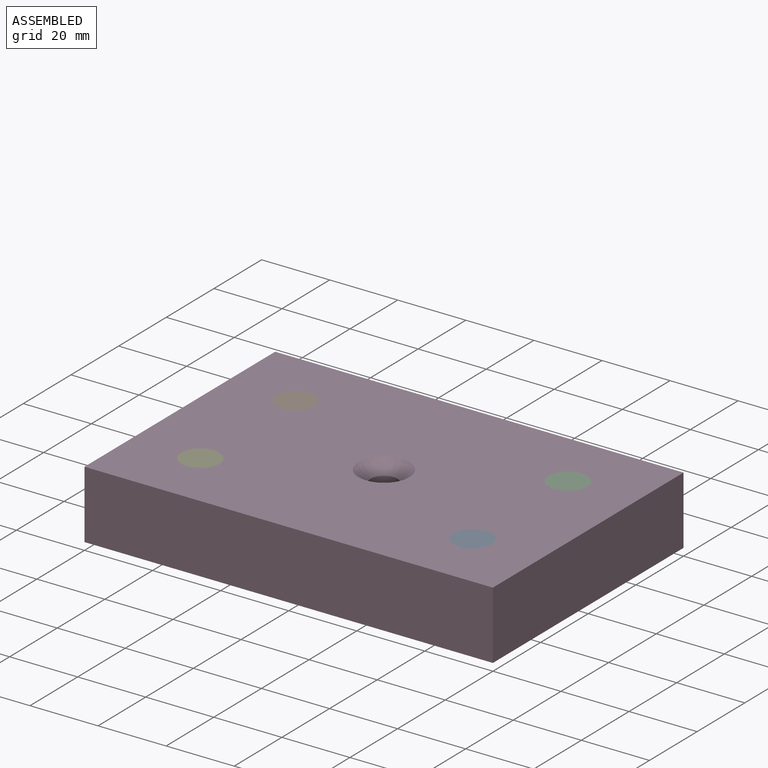
[diagram: assembled view]
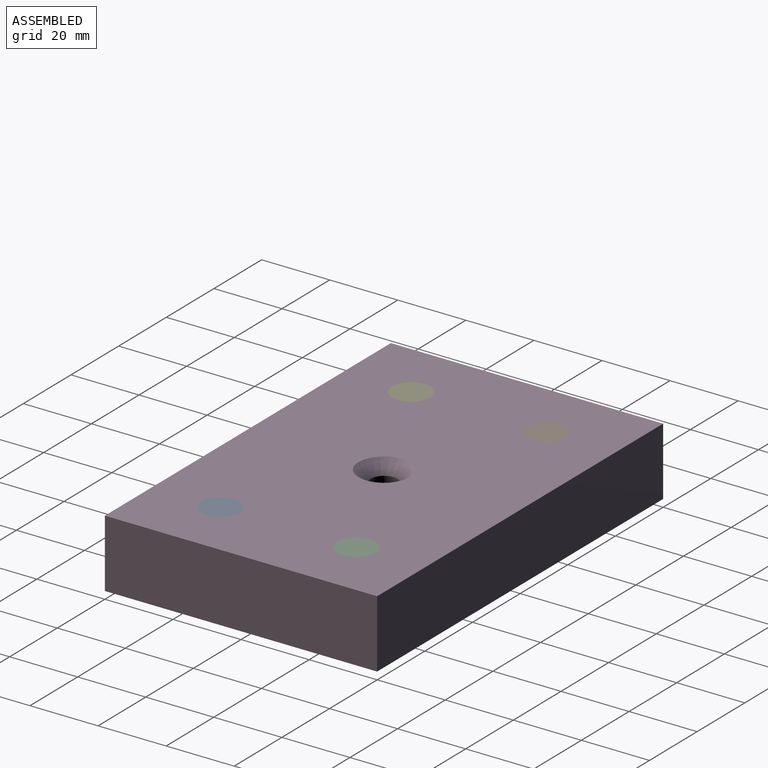
[diagram: assembled view, second angle]
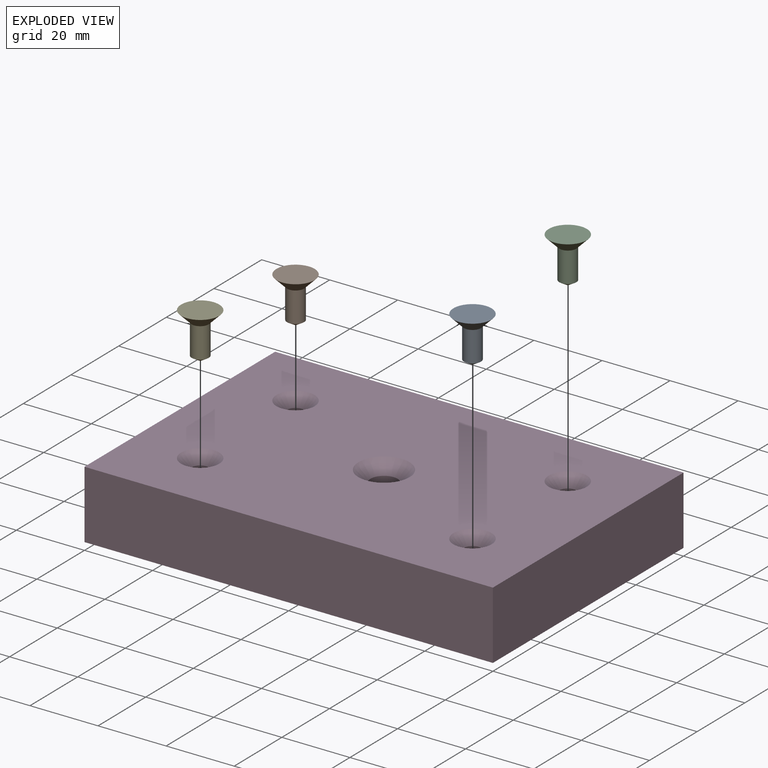
[diagram: exploded view]
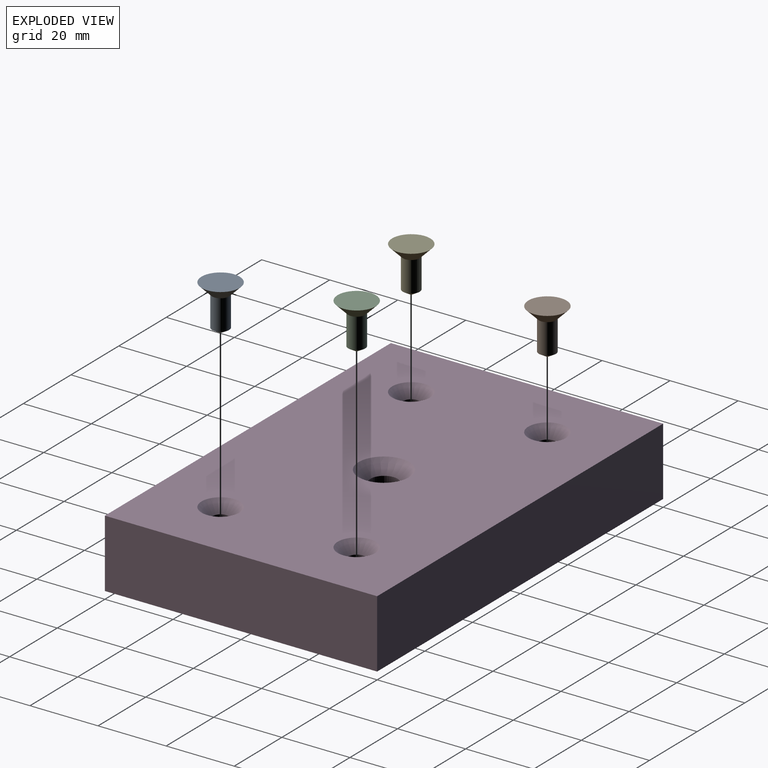
[diagram: exploded view, second angle]
ASSEMBLY  parts=5 mates=4
PART A: 4 faces, bbox 11.2x11.2x13.5 mm
  f0: plane 11.2x11.2mm, normal (0,0,1), area 98.5mm2, adj f3
  f1: cone r=0mm half-angle=59deg, axis (0,0,1), area 22.9mm2, adj f2
  f2: cylinder r=2.5mm len=8.9mm, axis (0,0,1), area 139.8mm2, adj f1,f3
  f3: cone r=2.5mm half-angle=45deg, axis (0,0,1), area 111.6mm2, adj f0,f2
PART B: same geometry as A
PART C: same geometry as A
PART D: 21 faces, bbox 120x80x20 mm
  f0: plane 80x20mm, normal (1,0,0), area 1600mm2, adj f1,f3,f4,f5
  f1: plane 120x20mm, normal (0,1,0), area 2400mm2, adj f0,f2,f4,f5
  f2: plane 80x20mm, normal (-1,0,0), area 1600mm2, adj f1,f3,f4,f5
  f3: plane 120x20mm, normal (0,-1,0), area 2400mm2, adj f0,f2,f4,f5
  f4: plane 120x80mm, normal (0,0,1), area 9029.2mm2, adj f0,f1,f2,f3,f8,f11,f14,f17
  f5: plane 120x80mm, normal (0,0,-1), area 9600mm2, adj f0,f1,f2,f3
  f6: cone r=0mm half-angle=59deg, axis (0,0,1), area 22.9mm2, adj f7
  f7: cylinder r=2.5mm len=8.9mm, axis (0,0,1), area 139.8mm2, adj f6,f8
  f8: cone r=2.5mm half-angle=45deg, axis (0,0,1), area 111.6mm2, adj f4,f7
  f9: cone r=0mm half-angle=59deg, axis (0,0,1), area 22.9mm2, adj f10
  f10: cylinder r=2.5mm len=8.9mm, axis (0,0,1), area 139.8mm2, adj f9,f11
  f11: cone r=2.5mm half-angle=45deg, axis (0,0,1), area 111.6mm2, adj f4,f10
  f12: cone r=0mm half-angle=59deg, axis (0,0,1), area 22.9mm2, adj f13
  f13: cylinder r=2.5mm len=8.9mm, axis (0,0,1), area 139.8mm2, adj f12,f14
  f14: cone r=2.5mm half-angle=45deg, axis (0,0,1), area 111.6mm2, adj f4,f13
  f15: cone r=0mm half-angle=59deg, axis (0,0,1), area 22.9mm2, adj f16
  f16: cylinder r=2.5mm len=8.9mm, axis (0,0,1), area 139.8mm2, adj f15,f17
  f17: cone r=2.5mm half-angle=45deg, axis (0,0,1), area 111.6mm2, adj f4,f16
  f18: cylinder r=4mm len=8.5mm, axis (0,0,1), area 213.6mm2, adj f19,f20
  f19: cone r=4mm half-angle=45deg, axis (0,0,1), area 178.8mm2, adj f4,f18
  f20: cone r=0mm half-angle=59deg, axis (0,0,1), area 58.6mm2, adj f18
PART E: same geometry as A
PLACE A at identity
PLACE B t=(-80,40,0)mm
PLACE C t=(0,40,0)mm
PLACE D at identity fixed
PLACE E t=(-80,0,0)mm
MATE fastened D.f15 <-> B.f1  axis (0,0,1) through (-40,20,20)mm
MATE fastened D.f6 <-> E.f1  axis (0,0,1) through (-40,-20,20)mm
MATE fastened D.f12 <-> C.f1  axis (0,0,1) through (40,20,20)mm
MATE fastened D.f9 <-> A.f1  axis (0,0,1) through (40,-20,20)mm
